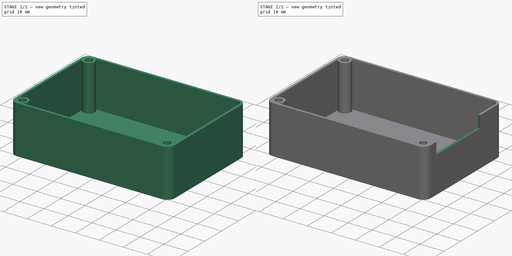
[diagram: build sequence overview — one tinted view per stage of 2, left to right]
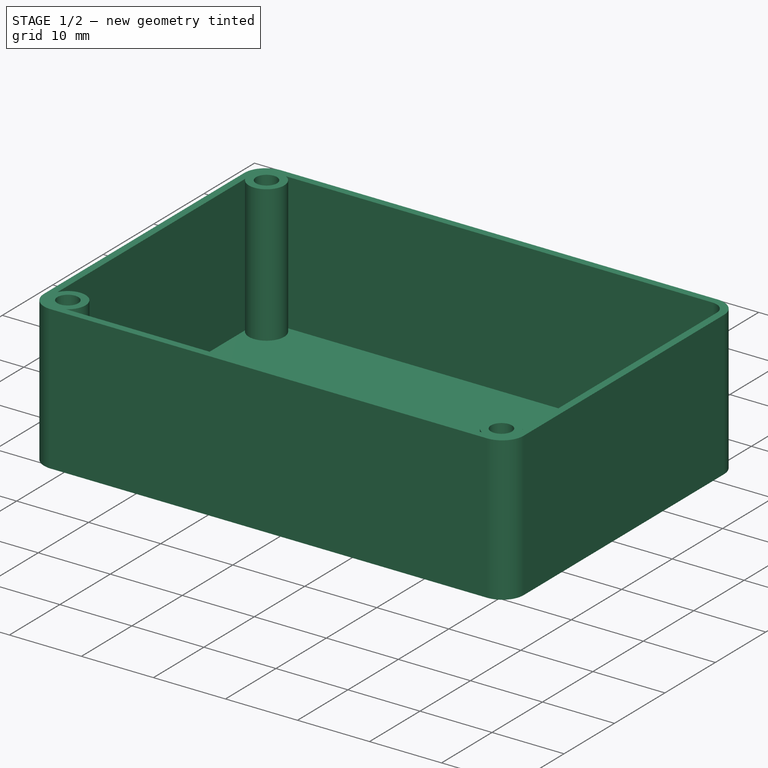
[diagram: stage 1 of 2 — iso view after this stage's code; geometry added in this stage tinted green]
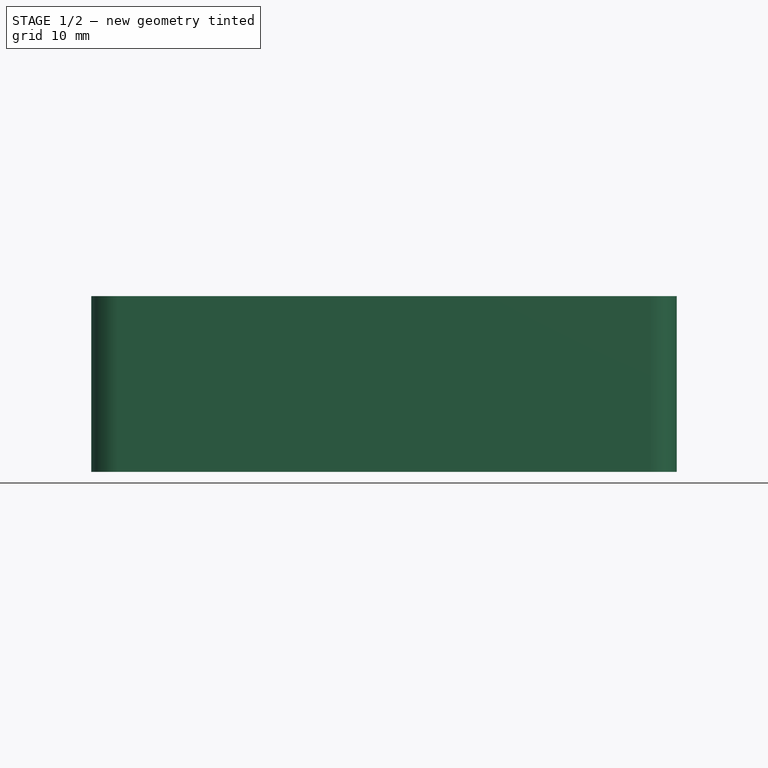
[diagram: stage 1 of 2 — front view after this stage's code; geometry added in this stage tinted green]
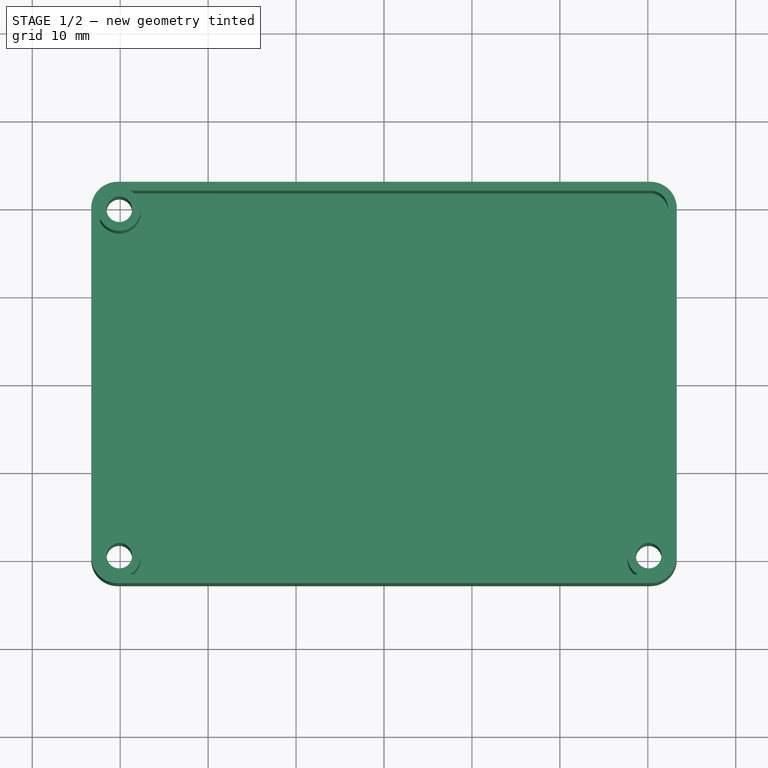
[diagram: stage 1 of 2 — top view after this stage's code; geometry added in this stage tinted green]
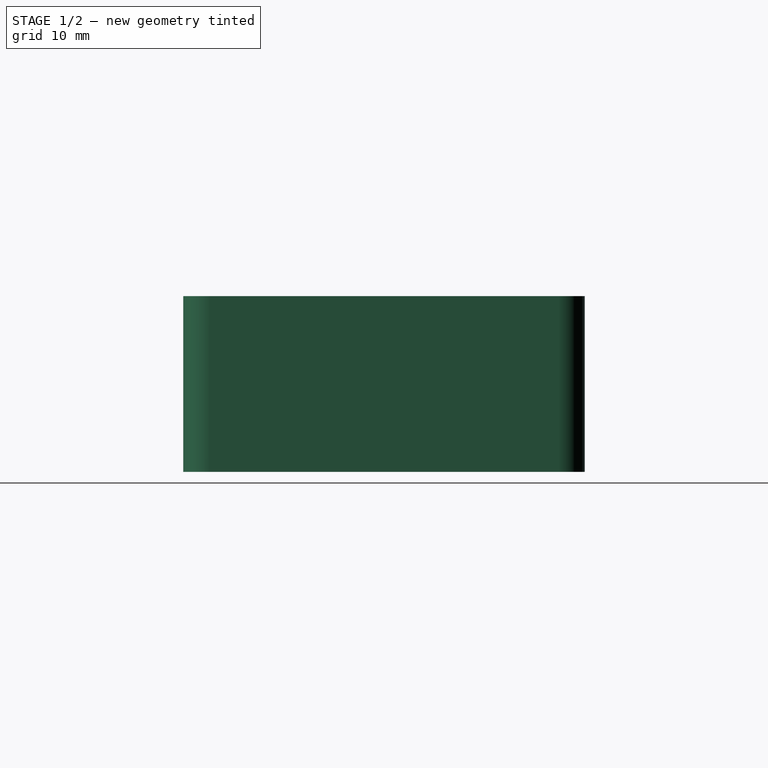
[diagram: stage 1 of 2 — right view after this stage's code; geometry added in this stage tinted green]
FCSTD DOCUMENT  (FreeCAD 0.20R29410 (Git))
Label: ELLoadSimplePowerCase
License: All rights reserved
LicenseURL: http://en.wikipedia.org/wiki/All_rights_reserved
objects: App::Link×14, Part::Feature×10, App::Part×4, Sketcher::SketchObject×3, PartDesign::Plane×2, PartDesign::CoordinateSystem×1, PartDesign::Pad×1, PartDesign::Thickness×1, PartDesign::Pocket×1, PartDesign::Body×1
note: 23 computed .brp shape members not serialized (recipe doc carries the construction recipe); baked Part::Feature solids carry a one-line shape summary decoded from their .brp

FEATURE [Sketcher::SketchObject] Sketch
  FullyConstrained = true
  MapMode = 5
  Support = -> [XY_Plane]
  sketch-geometry (15):
    g0: ArcOfCircle CenterX=-30.3 CenterY=19.825 CenterZ=0 NormalX=0 NormalY=0 NormalZ=1 AngleXU=0 Radius=3 StartAngle=1.5708 EndAngle=3.14159
    g1: LineSegment StartX=-30.3 StartY=22.825 StartZ=0 EndX=30.3 EndY=22.825 EndZ=0
    g2: ArcOfCircle CenterX=30.3 CenterY=19.825 CenterZ=0 NormalX=0 NormalY=0 NormalZ=1 AngleXU=0 Radius=3 StartAngle=4e-16 EndAngle=1.5708
    g3: LineSegment StartX=33.3 StartY=19.825 StartZ=0 EndX=33.3 EndY=-19.825 EndZ=0
    g4: ArcOfCircle CenterX=30.3 CenterY=-19.825 CenterZ=0 NormalX=0 NormalY=0 NormalZ=1 AngleXU=0 Radius=3 StartAngle=4.71239 EndAngle=6.28319
    g5: LineSegment StartX=30.3 StartY=-22.825 StartZ=0 EndX=-30.3 EndY=-22.825 EndZ=0
    g6: ArcOfCircle CenterX=-30.3 CenterY=-19.825 CenterZ=0 NormalX=0 NormalY=0 NormalZ=1 AngleXU=0 Radius=3 StartAngle=3.14159 EndAngle=4.71239
    g7: LineSegment StartX=-33.3 StartY=-19.825 StartZ=0 EndX=-33.3 EndY=19.825 EndZ=0
    g8: GeomPoint X=-33.3 Y=22.825 Z=0
    g9: GeomPoint X=33.3 Y=-22.825 Z=0
    g10: Circle CenterX=-30.1 CenterY=19.7 CenterZ=0 NormalX=0 NormalY=0 NormalZ=1 AngleXU=0 Radius=1.45
    g11: Circle CenterX=-30.1 CenterY=-19.7 CenterZ=0 NormalX=0 NormalY=0 NormalZ=1 AngleXU=0 Radius=1.45
    g12: Circle CenterX=30.1 CenterY=-19.7 CenterZ=0 NormalX=0 NormalY=0 NormalZ=1 AngleXU=0 Radius=1.45
    g13: LineSegment StartX=-30.1 StartY=19.7 StartZ=0 EndX=-30.1 EndY=-19.7 EndZ=0
    g14: LineSegment StartX=-30.1 StartY=-19.7 StartZ=0 EndX=30.1 EndY=-19.7 EndZ=0
  constraints (34):
    c: Tangent(g0,g1) = 1.5708
    c: Tangent(g1,g2) = 1.5708
    c: Tangent(g2,g3) = 1.5708
    c: Tangent(g3,g4) = 1.5708
    c: Tangent(g4,g5) = 1.5708
    c: Tangent(g5,g6) = 1.5708
    c: Tangent(g6,g7) = 1.5708
    c: Tangent(g7,g0) = 1.5708
    c: Horizontal(g1)
    c: Horizontal(g5)
    c: Vertical(g3)
    c: Vertical(g7)
    c: Equal(g0,g2)
    c: Equal(g2,g4)
    c: Equal(g4,g6)
    c: PointOnObject(g8,g1)
    c: PointOnObject(g8,g7)
    c: PointOnObject(g9,g3)
    c: PointOnObject(g9,g5)
    c: Symmetric(g0,g4,g-1)
    c: DistanceX(g0,g2) = 66.6
    c: DistanceY(g5,g0) = 45.65
    c: Coincident(g13,g10)
    c: Coincident(g13,g11)
    c: Coincident(g14,g11)
    c: Coincident(g14,g12)
    c: DistanceY(g11,g10) = 39.4
    c: Symmetric(g10,g11,g-1)
    c: Symmetric(g11,g12,g-2)
    c: DistanceX(g14,g14) = 60.2
    c: Diameter(g12) = 2.9
    c: Equal(g12,g11)
    c: Equal(g11,g10)
    c: Radius(g2) = 3
FEATURE [App::Link] C2_CP_Radial_D50mm_P200mm_86e44747657e_ln_  label="C5_CP_Radial_D50mm_P200mm_facd7163d8ad"
  LinkPlacement = pos=(152.4,-83.82,0) rot=(0,0,-1;1.5708rad)
  LinkedObject = -> Shape
  Placement = pos=(152.4,-83.82,0) rot=(0,0,-1;1.5708rad)
FEATURE [App::Link] C2_CP_Radial_D50mm_P200mm_86e44747657e_ln_001  label="C3_CP_Radial_D50mm_P200mm_a0deb9cea13e"
  LinkPlacement = pos=(167.64,-83.82,0) rot=(0,0,1;3.14159rad)
  LinkedObject = -> Shape
  Placement = pos=(167.64,-83.82,0) rot=(0,0,1;3.14159rad)
FEATURE [App::Link] C2_CP_Radial_D50mm_P200mm_86e44747657e_ln_002  label="C7_CP_Radial_D50mm_P200mm_314e8ac91aa1"
  LinkPlacement = pos=(152.4,-91.44,0) rot=(0,0,-1;1.5708rad)
  LinkedObject = -> Shape
  Placement = pos=(152.4,-91.44,0) rot=(0,0,-1;1.5708rad)
FEATURE [App::Link] C2_CP_Radial_D50mm_P200mm_86e44747657e_ln_003  label="C6_CP_Radial_D50mm_P200mm_0c76676d1c78"
  LinkPlacement = pos=(152.4,-99.06,0) rot=(0,0,-1;1.5708rad)
  LinkedObject = -> Shape
  Placement = pos=(152.4,-99.06,0) rot=(0,0,-1;1.5708rad)
FEATURE [App::Link] C2_CP_Radial_D50mm_P200mm_86e44747657e_ln_004  label="C4_CP_Radial_D50mm_P200mm_f84e341048be"
  LinkPlacement = pos=(152.4,-76.74,0) rot=(0,0,-1;1.5708rad)
  LinkedObject = -> Shape
  Placement = pos=(152.4,-76.74,0) rot=(0,0,-1;1.5708rad)
FEATURE [App::Link] C2_CP_Radial_D50mm_P200mm_86e44747657e_ln_005  label="C1_CP_Radial_D50mm_P200mm_2f2e94e5b908"
  LinkPlacement = pos=(133.665,-85.09,0) rot=(0,0,1;0rad)
  LinkedObject = -> Shape
  Placement = pos=(133.665,-85.09,0) rot=(0,0,1;0rad)
FEATURE [App::Link] D1_LED_0805_2012Metric_2fdb85feb49a_ln_  label="D2_LED_0805_2012Metric_715ecfb23091"
  LinkPlacement = pos=(161.798,-106.172,0) rot=(0,0,1;0rad)
  LinkedObject = -> Shape006
  Placement = pos=(161.798,-106.172,0) rot=(0,0,1;0rad)
FEATURE [App::Link] J3_JST_B3B_XH_A_405c3f21dcc5_ln_  label="J6_JST_B3B_XH_A_6297a16db5b2"
  LinkPlacement = pos=(168.385,-113.03,0) rot=(0,0,1;1.5708rad)
  LinkedObject = -> Shape004
  Placement = pos=(168.385,-113.03,0) rot=(0,0,1;1.5708rad)
FEATURE [App::Link] J3_JST_B3B_XH_A_405c3f21dcc5_ln_001  label="J5_JST_B3B_XH_A_4111b0df4d8a"
  LinkPlacement = pos=(155.685,-113.03,0) rot=(0,0,1;1.5708rad)
  LinkedObject = -> Shape004
  Placement = pos=(155.685,-113.03,0) rot=(0,0,1;1.5708rad)
FEATURE [PartDesign::CoordinateSystem] Local_CS_f12
  AttacherType = Attacher::AttachEngine3D
  MapMode = 2
  Support = -> [X_Axis002]
FEATURE [Sketcher::SketchObject] PCB_Sketch_f12
  FullyConstrained = false
  sketch-geometry (8):
    g0: LineSegment StartX=182.6 StartY=-74.3 StartZ=0 EndX=182.637 EndY=-113.7 EndZ=0
    g1: LineSegment StartX=179.437 StartY=-116.9 StartZ=0 EndX=119.2 EndY=-116.9 EndZ=0
    g2: LineSegment StartX=116 StartY=-113.7 StartZ=0 EndX=116 EndY=-74.3 EndZ=0
    g3: LineSegment StartX=119.2 StartY=-71.1 StartZ=0 EndX=179.4 EndY=-71.1 EndZ=0
    g4: ArcOfCircle CenterX=179.437 CenterY=-113.7 CenterZ=0 NormalX=0 NormalY=0 NormalZ=-1 AngleXU=3.14159 Radius=3.2 StartAngle=0 EndAngle=1.5708
    g5: ArcOfCircle CenterX=119.2 CenterY=-74.3 CenterZ=0 NormalX=0 NormalY=0 NormalZ=-1 AngleXU=-3.20299e-07 Radius=3.2 StartAngle=0 EndAngle=1.5708
    g6: ArcOfCircle CenterX=179.4 CenterY=-74.3 CenterZ=0 NormalX=0 NormalY=0 NormalZ=-1 AngleXU=1.5708 Radius=3.2 StartAngle=0 EndAngle=1.5708
    g7: ArcOfCircle CenterX=119.2 CenterY=-113.7 CenterZ=0 NormalX=0 NormalY=0 NormalZ=-1 AngleXU=-1.5708 Radius=3.2 StartAngle=0 EndAngle=1.5708
  constraints (8):
    c: Coincident(g2,g7)
    c: Coincident(g2,g5)
    c: Coincident(g1,g7)
    c: Coincident(g3,g5)
    c: Coincident(g3,g6)
    c: Coincident(g1,g4)
    c: Coincident(g0,g6)
    c: Coincident(g0,g4)
FEATURE [Part::Feature] Pcb_f12
  shape: bbox 66.64 x 45.8 x 1.6 mm, 95 faces (baked)
FEATURE [App::Part] Board_Geoms_f12
  Group = -> [Pcb_f12,PCB_Sketch_f12]
  Origin = -> Origin001
FEATURE [App::Link] R2_R_0805_2012Metric_513d5d51fc14_ln_  label="R1_R_0805_2012Metric_a281e16102a4"
  LinkPlacement = pos=(150.622,-114.808,0) rot=(0,0,1;3.14159rad)
  LinkedObject = -> Shape005
  Placement = pos=(150.622,-114.808,0) rot=(0,0,1;3.14159rad)
FEATURE [Part::Feature] Shape  label="C2_CP_Radial_D50mm_P200mm_86e44747657e"
  Placement = pos=(135.575,-102.235,0) rot=(0,0,1;3.14159rad)
  shape: bbox 6.128 x 6.515 x 7 mm, 49 faces (baked)
FEATURE [Part::Feature] Shape001  label="J2_PinHeader_2x05_P254mm_Vertical_2d928ccc9e48"
  Placement = pos=(167.635,-90.2258,0) rot=(0,0,1;0rad)
  shape: bbox 5.08 x 12.7 x 11.54 mm, 214 faces (baked)
FEATURE [Part::Feature] Shape002  label="U5_TO-220-3_Vertical_5d7781ab892e"
  Placement = pos=(138.42,-74.86,0) rot=(0,0,1;0rad)
  shape: bbox 10.25 x 4.455 x 28.53 mm, 48 faces (baked)
FEATURE [Part::Feature] Shape003  label="J4_PinSocket_1x10_P254mm_Horizontal_80075c0270da"
  Placement = pos=(181.325,-108.834,0) rot=(0,0,1;3.14159rad)
  shape: bbox 10.13 x 25.4 x 5.84 mm, 360 faces (baked)
FEATURE [Part::Feature] Shape004  label="J3_JST_B3B_XH_A_405c3f21dcc5"
  Placement = pos=(177.275,-79.97,0) rot=(0,0,1;1.5708rad)
  shape: bbox 5.75 x 9.9 x 10.4 mm, 117 faces (baked)
FEATURE [Part::Feature] Shape005  label="R2_R_0805_2012Metric_513d5d51fc14"
  Placement = pos=(150.622,-106.172,0) rot=(0,0,1;3.14159rad)
  shape: bbox 2 x 1.2 x 0.45 mm, 26 faces (baked)
FEATURE [Part::Feature] Shape006  label="D1_LED_0805_2012Metric_2fdb85feb49a"
  Placement = pos=(161.925,-114.935,0) rot=(0,0,1;0rad)
  shape: bbox 2 x 1.25 x 1.1 mm, 50 faces (baked)
FEATURE [Part::Feature] Shape007  label="J1_PinHeader_1x03_P200mm_Vertical_4dd7be2cd8ec"
  Placement = pos=(157.48,-90.805,0) rot=(0,0,1;0rad)
  shape: bbox 2 x 6 x 8.8 mm, 76 faces (baked)
FEATURE [Part::Feature] Shape008  label="U1_PinSocket_1x03_P254mm_Vertical_91df090aab00"
  Placement = pos=(133.69,-91.455,0) rot=(0,0,1;0rad)
  shape: bbox 2.54 x 7.62 x 10.1 mm, 103 faces (baked)
FEATURE [App::Link] U5_TO_220_3_Vertical_5d7781ab892e_ln_  label="U6_TO-220-3_Vertical_07aa909782ab"
  LinkPlacement = pos=(143.51,-113.1,0) rot=(0,0,1;3.14159rad)
  LinkedObject = -> Shape002
  Placement = pos=(143.51,-113.1,0) rot=(0,0,1;3.14159rad)
FEATURE [App::Link] U5_TO_220_3_Vertical_5d7781ab892e_ln_001  label="U2_TO-220-3_Vertical_57357e98f7b0"
  LinkPlacement = pos=(161.29,-74.93,0) rot=(0,0,1;0rad)
  LinkedObject = -> Shape002
  Placement = pos=(161.29,-74.93,0) rot=(0,0,1;0rad)
FEATURE [App::Link] U5_TO_220_3_Vertical_5d7781ab892e_ln_002  label="U3_TO-220-3_Vertical_f1f6e2062826"
  LinkPlacement = pos=(144.77,-88.9,0) rot=(0,0,1;1.5708rad)
  LinkedObject = -> Shape002
  Placement = pos=(144.77,-88.9,0) rot=(0,0,1;1.5708rad)
FEATURE [App::Link] U5_TO_220_3_Vertical_5d7781ab892e_ln_003  label="U4_TO-220-3_Vertical_5b7fb0c3af54"
  LinkPlacement = pos=(144.77,-104.14,0) rot=(0,0,1;1.5708rad)
  LinkedObject = -> Shape002
  Placement = pos=(144.77,-104.14,0) rot=(0,0,1;1.5708rad)
FEATURE [App::Part] Top_f12
  Group = -> [Shape,Shape001,Shape002,Shape003,C2_CP_Radial_D50mm_P200mm_86e44747657e_ln_,U5_TO_220_3_Vertical_5d7781ab892e_ln_,Shape004,C2_CP_Radial_D50mm_P200mm_86e44747657e_ln_001,Shape005,Shape006,J3_JST_B3B_XH_A_405c3f21dcc5_ln_,U5_TO_220_3_Vertical_5d7781ab892e_ln_001,J3_JST_B3B_XH_A_405c3f21dcc5_ln_001,C2_CP_Radial_D50mm_P200mm_86e44747657e_ln_002,C2_CP_Radial_D50mm_P200mm_86e44747657e_ln_003,+8 more]
  Origin = -> Origin004
FEATURE [App::Part] Step_Models_f12
  Group = -> [Top_f12]
  Origin = -> Origin003
FEATURE [App::Part] Board_f12  label="EL-Load-V2-Simple-Power"
  Group = -> [Local_CS_f12,Board_Geoms_f12,Step_Models_f12]
  Origin = -> Origin002
FEATURE [PartDesign::Pad] Pad
  Direction = (0,0,1)
  Length = 20
  Length2 = 10
  Profile = -> Sketch
  ReferenceAxis = -> Sketch [N_Axis]
  Reversed = true
  Type = 0
FEATURE [PartDesign::Thickness] Thickness
  Base = -> Pad [Face12]
  BaseFeature = -> Pad
  Intersection = true
  Join = 1
  Mode = 1
  Reversed = true
  SupportTransform = false
  Value = 1
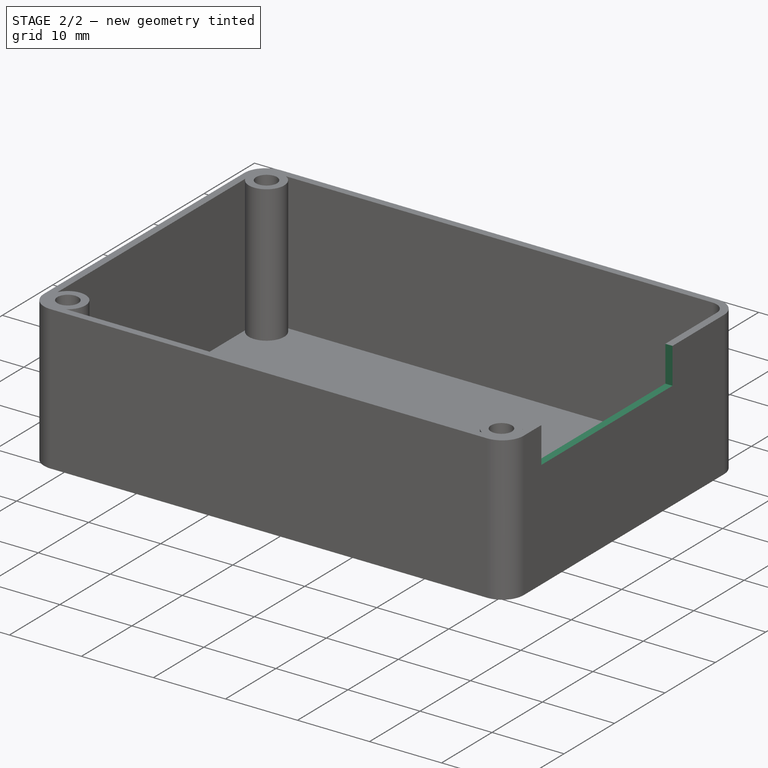
[diagram: stage 2 of 2 — iso view after this stage's code; geometry added in this stage tinted green]
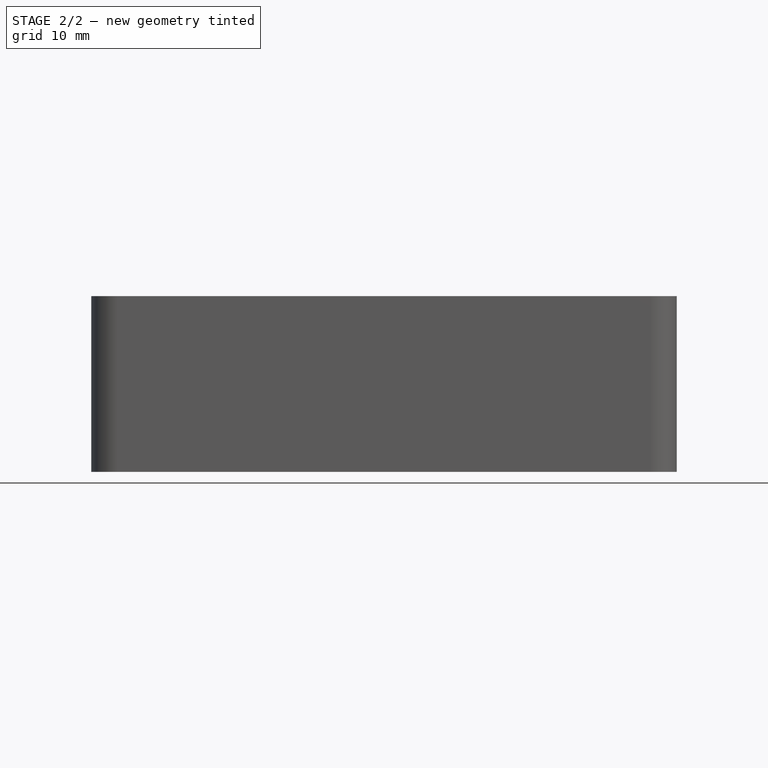
[diagram: stage 2 of 2 — front view after this stage's code; geometry added in this stage tinted green]
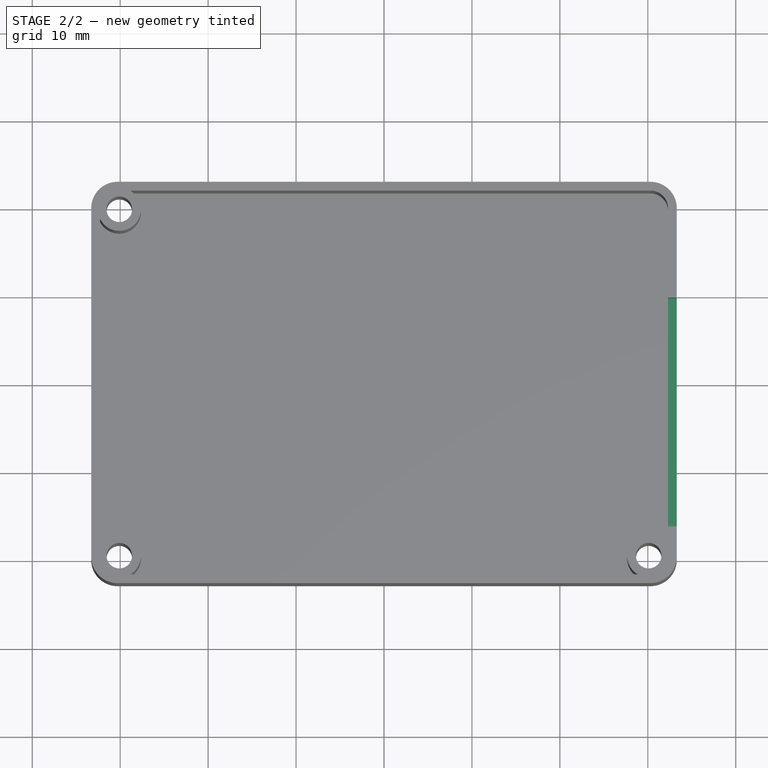
[diagram: stage 2 of 2 — top view after this stage's code; geometry added in this stage tinted green]
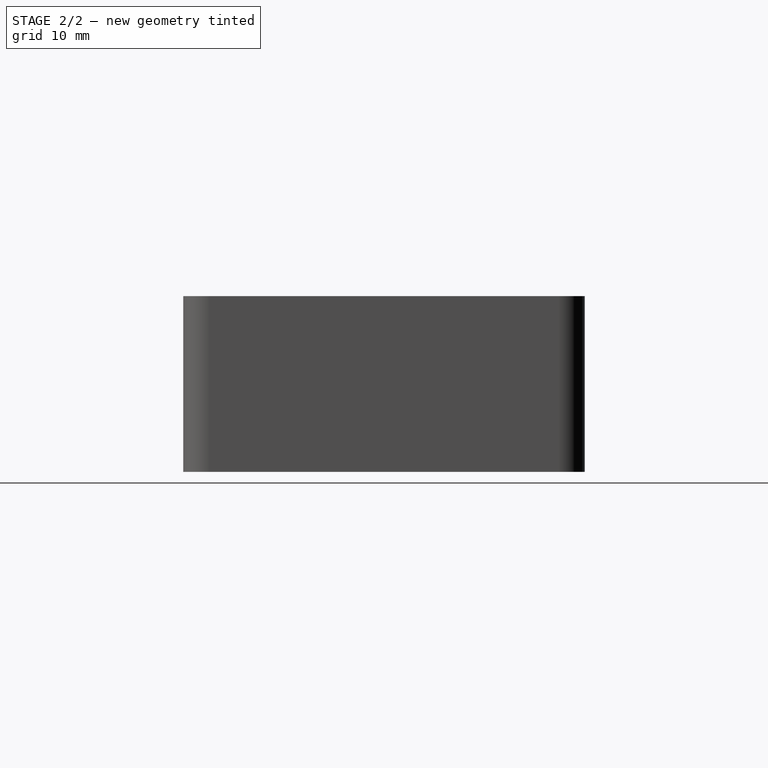
[diagram: stage 2 of 2 — right view after this stage's code; geometry added in this stage tinted green]
FEATURE [PartDesign::Plane] DatumPlane
  Length = 78.1412
  MapMode = 5
  ResizeMode = 0
  Support = -> [Thickness]
  Width = 61.5412
FEATURE [PartDesign::Plane] DatumPlane001
  Length = 60
  MapMode = 5
  Placement = pos=(33.3,0,0) rot=(0.57735,0.57735,0.57735;2.0944rad)
  ResizeMode = 0
  Support = -> [Thickness]
  Width = 60
FEATURE [Sketcher::SketchObject] Sketch001
  FullyConstrained = true
  MapMode = 5
  Placement = pos=(33.3,0,0) rot=(0.57735,0.57735,0.57735;2.0944rad)
  Support = -> [DatumPlane001]
  sketch-geometry (4):
    g0: LineSegment StartX=-16.35 StartY=0 StartZ=0 EndX=9.65 EndY=0 EndZ=0
    g1: LineSegment StartX=9.65 StartY=0 StartZ=0 EndX=9.65 EndY=-5 EndZ=0
    g2: LineSegment StartX=9.65 StartY=-5 StartZ=0 EndX=-16.35 EndY=-5 EndZ=0
    g3: LineSegment StartX=-16.35 StartY=-5 StartZ=0 EndX=-16.35 EndY=0 EndZ=0
  constraints (12):
    c: Coincident(g0,g1)
    c: Coincident(g1,g2)
    c: Coincident(g2,g3)
    c: Coincident(g3,g0)
    c: Horizontal(g0)
    c: Horizontal(g2)
    c: Vertical(g1)
    c: Vertical(g3)
    c: PointOnObject(g0,g-1)
    c: DistanceX(g2,g2) = 26
    c: DistanceY(g1,g1) = 5
    c: DistanceX(g-1,g0) = 9.65
FEATURE [PartDesign::Pocket] Pocket
  BaseFeature = -> Thickness
  Direction = (-1,0,0)
  Length = 5
  Length2 = 5
  Profile = -> Sketch001
  ReferenceAxis = -> Sketch001 [N_Axis]
  Type = 0
FEATURE [PartDesign::Body] Body
  Group = -> [Sketch,Pad,Thickness,DatumPlane,DatumPlane001,Sketch001,Pocket]
  Origin = -> Origin
  Placement = pos=(149.3,-94,-1.6) rot=(0,0,1;0rad)
  Tip = -> Pocket
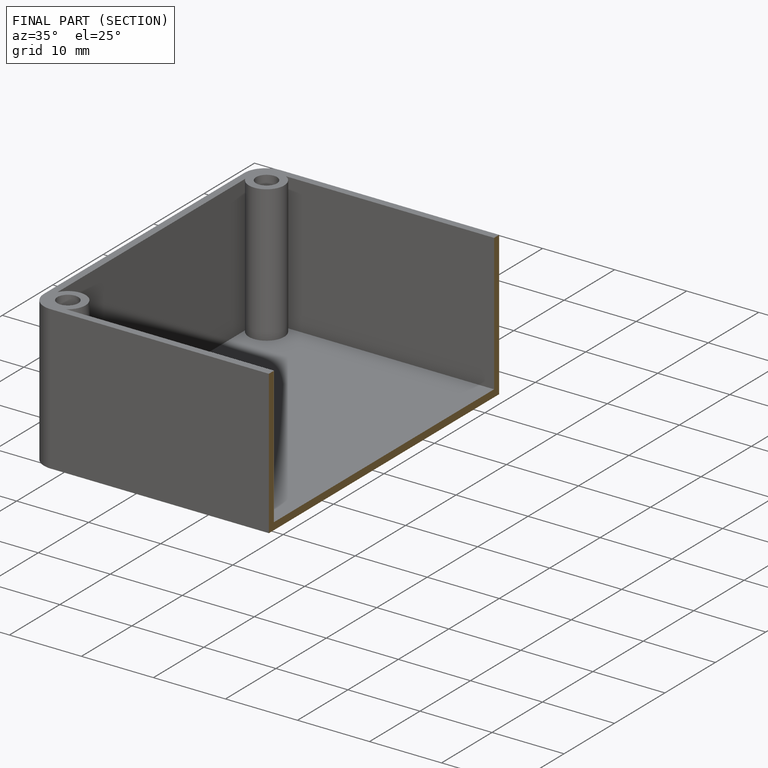
[diagram: finished part — half-section view (interior)]
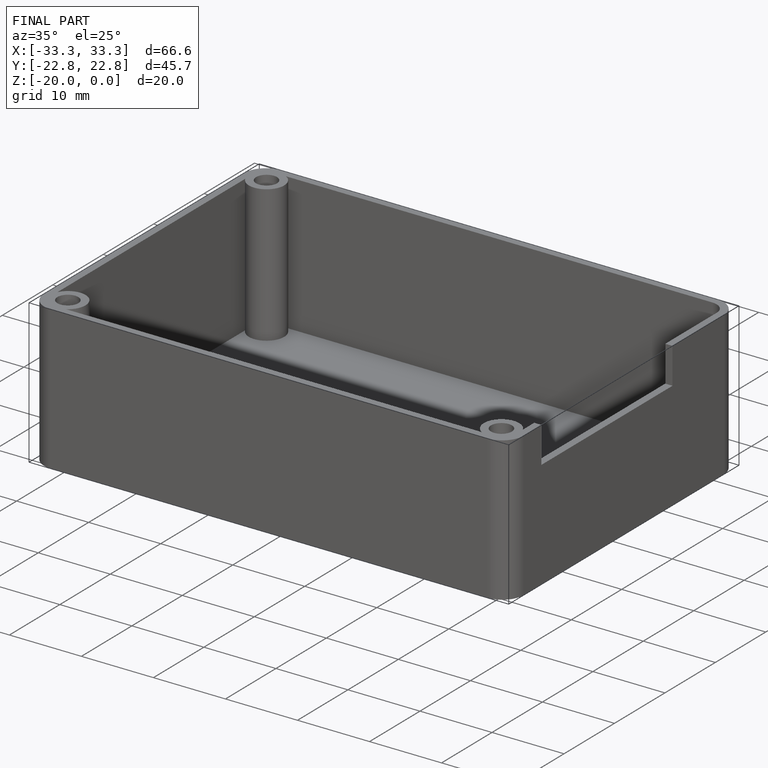
[diagram: finished part — iso view with bounding-box wireframe]
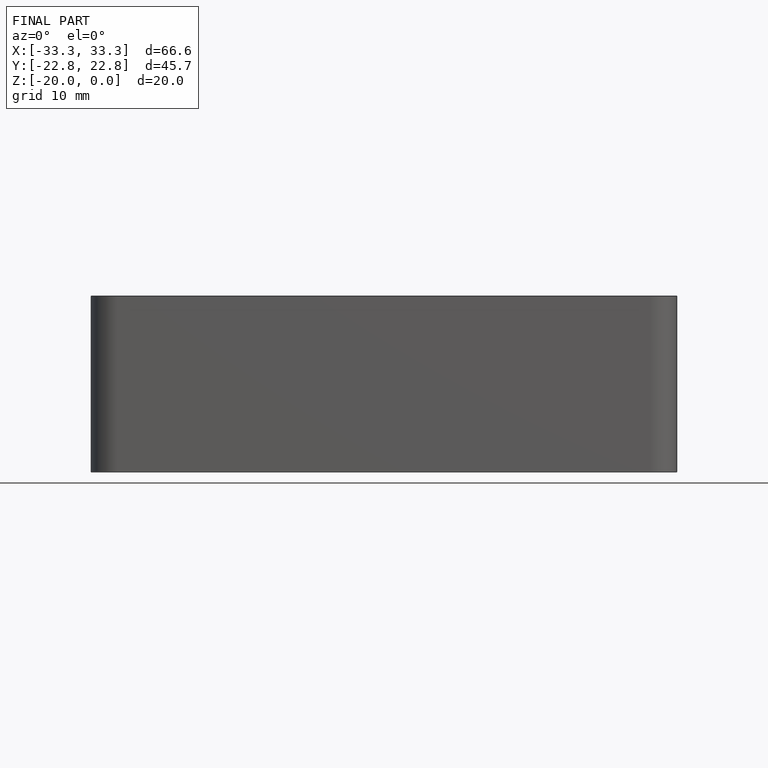
[diagram: finished part — front view with bounding-box wireframe]
